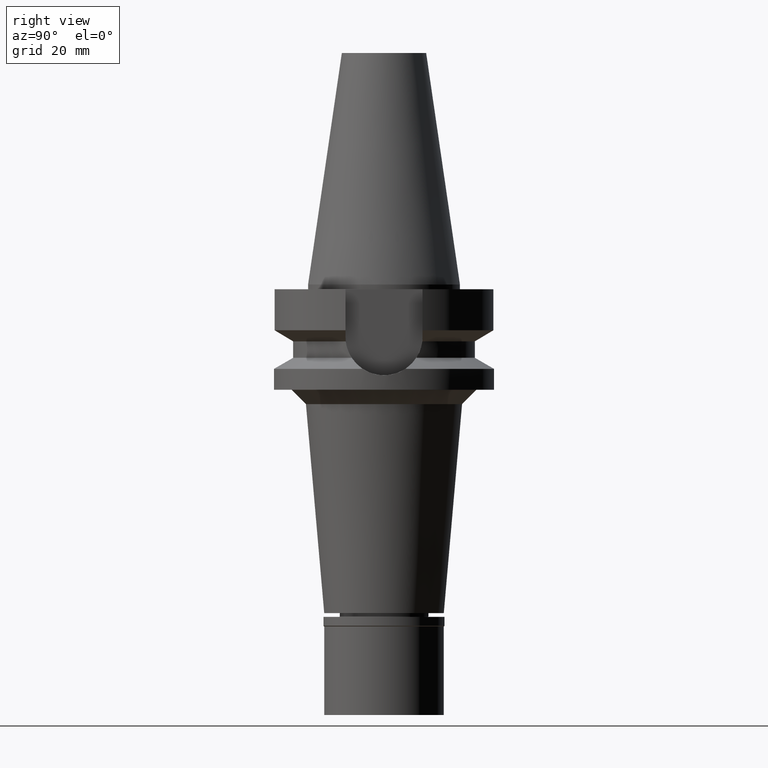
[diagram: clean part render]
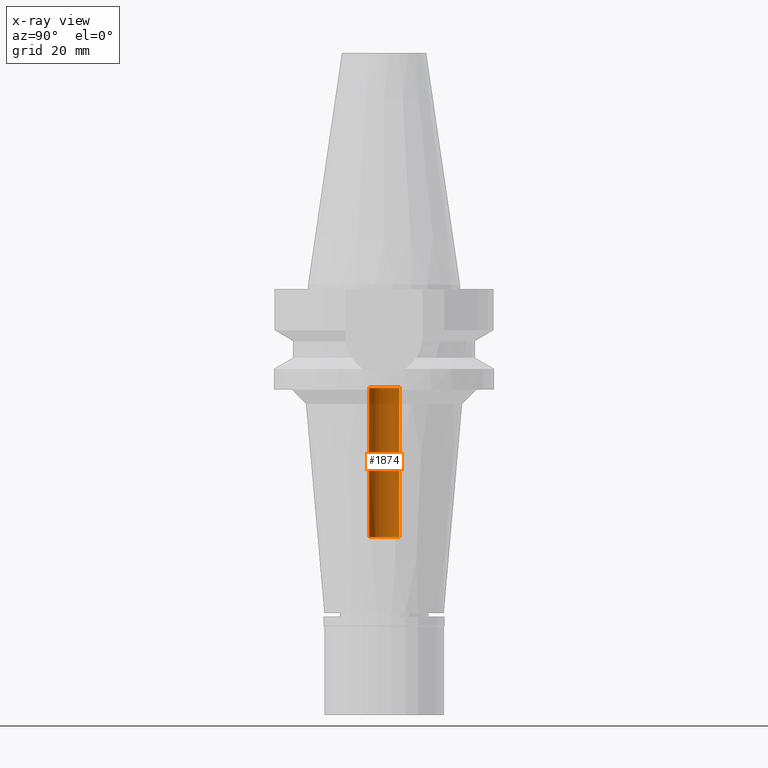
[diagram: x-ray — body ghosted, one internal face saturated and labeled with its STEP entity id]
A machine part, right view, then the same camera in x-ray: the body is ghosted and one INTERNAL B-rep face — a face not visible from any outside direction — is saturated and labeled: STEP entity #1874.
In plain terms, the highlighted cylindrical surface (edge-blend (fillet) strip) has radius 3.2 mm, axis along (0, 0, -1).
Its self-contained STEP definition (entity closure, byte-faithful):
#19 = ORIENTED_EDGE ( 'NONE', *, *, #2908, .T. ) ;
#67 = CARTESIAN_POINT ( 'NONE',  ( 0.0000000000000000000, 0.0000000000000000000, -52.79999999999999716 ) ) ;
#295 = DIRECTION ( 'NONE',  ( 0.0000000000000000000, -1.000000000000000000, 0.0000000000000000000 ) ) ;
#674 = CARTESIAN_POINT ( 'NONE',  ( 0.0000000000000000000, 0.0000000000000000000, -21.60000000000000142 ) ) ;
#922 = ORIENTED_EDGE ( 'NONE', *, *, #2552, .F. ) ;
#1180 = DIRECTION ( 'NONE',  ( 0.0000000000000000000, 1.000000000000000000, 0.0000000000000000000 ) ) ;
#1197 = CARTESIAN_POINT ( 'NONE',  ( 0.0000000000000000000, 0.0000000000000000000, 0.0000000000000000000 ) ) ;
#1251 = CARTESIAN_POINT ( 'NONE',  ( 0.0000000000000000000, 3.200000000000000178, -52.79999999999999716 ) ) ;
#1274 = CARTESIAN_POINT ( 'NONE',  ( 0.0000000000000000000, -3.200000000000000178, -52.79999999999999716 ) ) ;
#1320 = CARTESIAN_POINT ( 'NONE',  ( 0.0000000000000000000, -3.200000000000000178, -21.60000000000000142 ) ) ;
#1426 = FACE_OUTER_BOUND ( 'NONE', #2162, .T. ) ;
#1446 = EDGE_CURVE ( 'NONE', #2713, #2423, #2175, .T. ) ;
#1454 = CYLINDRICAL_SURFACE ( 'NONE', #2656, 3.200000000000000178 ) ;
#1461 = VECTOR ( 'NONE', #2654, 1000.000000000000000 ) ;
#1513 = VECTOR ( 'NONE', #2156, 1000.000000000000000 ) ;
#1741 = ORIENTED_EDGE ( 'NONE', *, *, #1446, .T. ) ;
#1770 = CARTESIAN_POINT ( 'NONE',  ( 0.0000000000000000000, 3.200000000000000178, -52.79999999999999716 ) ) ;
#1849 = AXIS2_PLACEMENT_3D ( 'NONE', #67, #2401, #295 ) ;
#1874 = ADVANCED_FACE ( 'NONE', ( #1426 ), #1454, .F. ) ;
#1882 = LINE ( 'NONE', #2366, #1513 ) ;
#1935 = LINE ( 'NONE', #1251, #1461 ) ;
#2080 = DIRECTION ( 'NONE',  ( 0.0000000000000000000, 0.0000000000000000000, 1.000000000000000000 ) ) ;
#2156 = DIRECTION ( 'NONE',  ( 0.0000000000000000000, 0.0000000000000000000, 1.000000000000000000 ) ) ;
#2162 = EDGE_LOOP ( 'NONE', ( #1741, #922, #19, #2707 ) ) ;
#2175 = CIRCLE ( 'NONE', #2462, 3.200000000000000178 ) ;
#2197 = CARTESIAN_POINT ( 'NONE',  ( 0.0000000000000000000, 3.200000000000000178, -21.60000000000000142 ) ) ;
#2366 = CARTESIAN_POINT ( 'NONE',  ( 0.0000000000000000000, -3.200000000000000178, -52.79999999999999716 ) ) ;
#2376 = VERTEX_POINT ( 'NONE', #1770 ) ;
#2401 = DIRECTION ( 'NONE',  ( 0.0000000000000000000, 0.0000000000000000000, -1.000000000000000000 ) ) ;
#2423 = VERTEX_POINT ( 'NONE', #1320 ) ;
#2462 = AXIS2_PLACEMENT_3D ( 'NONE', #674, #2080, #1180 ) ;
#2552 = EDGE_CURVE ( 'NONE', #2607, #2423, #1882, .T. ) ;
#2607 = VERTEX_POINT ( 'NONE', #1274 ) ;
#2631 = DIRECTION ( 'NONE',  ( 0.0000000000000000000, -1.000000000000000000, 0.0000000000000000000 ) ) ;
#2654 = DIRECTION ( 'NONE',  ( 0.0000000000000000000, 0.0000000000000000000, 1.000000000000000000 ) ) ;
#2656 = AXIS2_PLACEMENT_3D ( 'NONE', #1197, #2676, #2631 ) ;
#2676 = DIRECTION ( 'NONE',  ( 0.0000000000000000000, 0.0000000000000000000, -1.000000000000000000 ) ) ;
#2707 = ORIENTED_EDGE ( 'NONE', *, *, #2830, .T. ) ;
#2713 = VERTEX_POINT ( 'NONE', #2197 ) ;
#2830 = EDGE_CURVE ( 'NONE', #2376, #2713, #1935, .T. ) ;
#2908 = EDGE_CURVE ( 'NONE', #2607, #2376, #2961, .T. ) ;
#2961 = CIRCLE ( 'NONE', #1849, 3.200000000000000178 ) ;